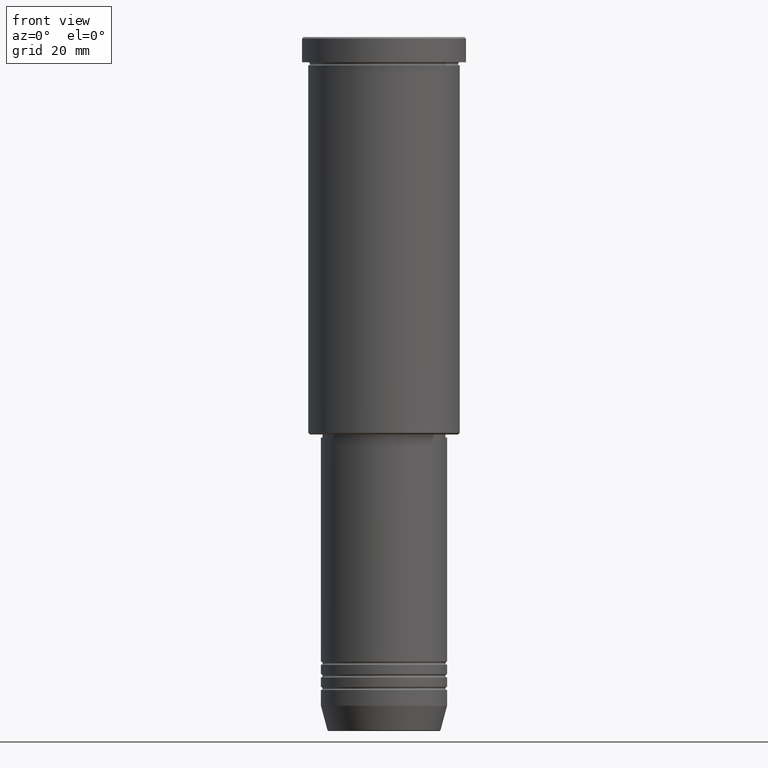
[diagram: clean part render]
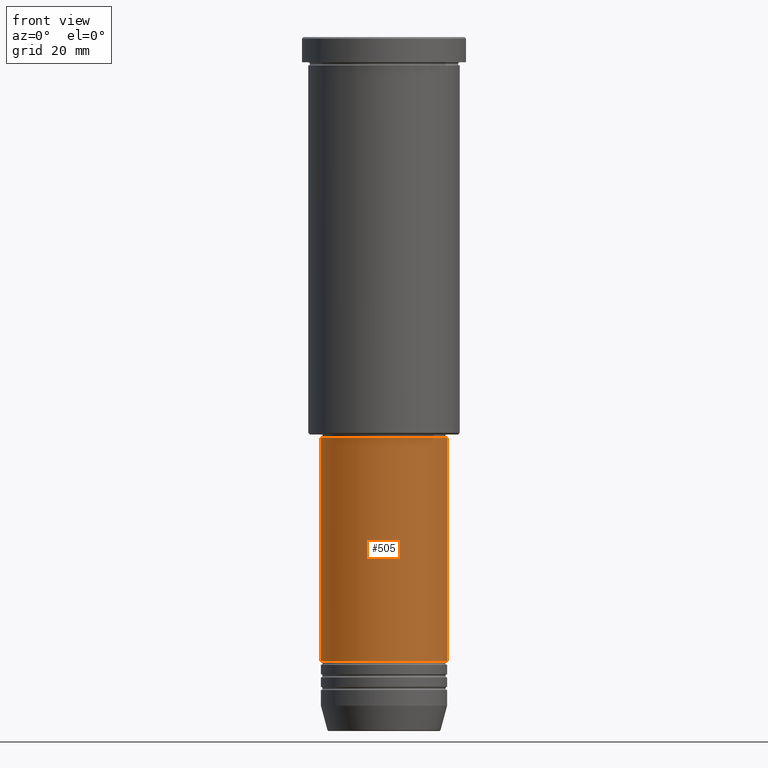
[diagram: same view with one face highlighted and labeled with its STEP entity id]
A machine part, front view. The second image highlights one B-rep face of the part: STEP entity #505.
In plain terms, the highlighted cylindrical surface (partial cylindrical patch) has radius 20 mm, axis along (-0, -0, 1).
Its self-contained STEP definition (entity closure, byte-faithful):
#29 = DIRECTION ( 'NONE',  ( -0.000000000000000000, -0.000000000000000000, 1.000000000000000000 ) ) ;
#61 = VERTEX_POINT ( 'NONE', #629 ) ;
#66 = ORIENTED_EDGE ( 'NONE', *, *, #330, .F. ) ;
#68 = CIRCLE ( 'NONE', #528, 20.00000000000000355 ) ;
#85 = DIRECTION ( 'NONE',  ( -0.000000000000000000, -0.000000000000000000, 1.000000000000000000 ) ) ;
#88 = CARTESIAN_POINT ( 'NONE',  ( 20.00000000000000355, 0.000000000000000000, 0.000000000000000000 ) ) ;
#93 = CARTESIAN_POINT ( 'NONE',  ( -20.00000000000000355, 2.449293598294706907E-15, -197.9999999999999716 ) ) ;
#135 = LINE ( 'NONE', #790, #466 ) ;
#180 = FACE_OUTER_BOUND ( 'NONE', #725, .T. ) ;
#239 = CARTESIAN_POINT ( 'NONE',  ( 0.000000000000000000, 0.000000000000000000, -127.0000000000000000 ) ) ;
#288 = VERTEX_POINT ( 'NONE', #846 ) ;
#330 = EDGE_CURVE ( 'NONE', #542, #288, #135, .T. ) ;
#353 = ORIENTED_EDGE ( 'NONE', *, *, #529, .T. ) ;
#357 = CIRCLE ( 'NONE', #546, 20.00000000000000355 ) ;
#365 = DIRECTION ( 'NONE',  ( -0.000000000000000000, -0.000000000000000000, 1.000000000000000000 ) ) ;
#466 = VECTOR ( 'NONE', #968, 1000.000000000000000 ) ;
#505 = ADVANCED_FACE ( 'NONE', ( #180 ), #902, .T. ) ;
#528 = AXIS2_PLACEMENT_3D ( 'NONE', #666, #29, #1117 ) ;
#529 = EDGE_CURVE ( 'NONE', #61, #835, #910, .T. ) ;
#542 = VERTEX_POINT ( 'NONE', #93 ) ;
#546 = AXIS2_PLACEMENT_3D ( 'NONE', #239, #85, #901 ) ;
#554 = ORIENTED_EDGE ( 'NONE', *, *, #805, .F. ) ;
#629 = CARTESIAN_POINT ( 'NONE',  ( 20.00000000000000355, 0.000000000000000000, -197.9999999999999716 ) ) ;
#666 = CARTESIAN_POINT ( 'NONE',  ( 0.000000000000000000, 0.000000000000000000, -197.9999999999999716 ) ) ;
#725 = EDGE_LOOP ( 'NONE', ( #66, #767, #353, #554 ) ) ;
#738 = AXIS2_PLACEMENT_3D ( 'NONE', #1095, #365, #1085 ) ;
#767 = ORIENTED_EDGE ( 'NONE', *, *, #1070, .T. ) ;
#790 = CARTESIAN_POINT ( 'NONE',  ( -20.00000000000000355, 2.449293598294706907E-15, 0.000000000000000000 ) ) ;
#791 = VECTOR ( 'NONE', #1090, 1000.000000000000000 ) ;
#805 = EDGE_CURVE ( 'NONE', #288, #835, #357, .T. ) ;
#835 = VERTEX_POINT ( 'NONE', #979 ) ;
#846 = CARTESIAN_POINT ( 'NONE',  ( -20.00000000000000355, 2.449293598294706907E-15, -127.0000000000000000 ) ) ;
#901 = DIRECTION ( 'NONE',  ( 1.000000000000000000, 0.000000000000000000, 0.000000000000000000 ) ) ;
#902 = CYLINDRICAL_SURFACE ( 'NONE', #738, 20.00000000000000355 ) ;
#910 = LINE ( 'NONE', #88, #791 ) ;
#968 = DIRECTION ( 'NONE',  ( -0.000000000000000000, -0.000000000000000000, 1.000000000000000000 ) ) ;
#979 = CARTESIAN_POINT ( 'NONE',  ( 20.00000000000000355, 0.000000000000000000, -127.0000000000000000 ) ) ;
#1070 = EDGE_CURVE ( 'NONE', #542, #61, #68, .T. ) ;
#1085 = DIRECTION ( 'NONE',  ( 1.000000000000000000, 0.000000000000000000, 0.000000000000000000 ) ) ;
#1090 = DIRECTION ( 'NONE',  ( -0.000000000000000000, -0.000000000000000000, 1.000000000000000000 ) ) ;
#1095 = CARTESIAN_POINT ( 'NONE',  ( 0.000000000000000000, 0.000000000000000000, 0.000000000000000000 ) ) ;
#1117 = DIRECTION ( 'NONE',  ( 1.000000000000000000, 0.000000000000000000, 0.000000000000000000 ) ) ;